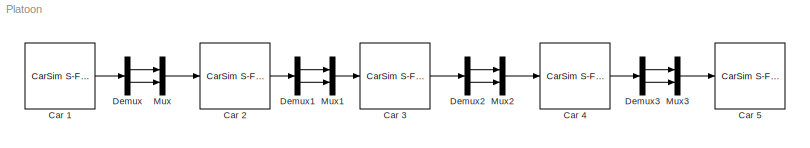
MODEL Platoon
KIND model
BLOCK [Reference] Car 1  REF=Solver_SF/CarSim S-Function
  Ports = [0, 1]
  Priority = 1
  Run_RTs = off
  SID = 24
  SIMFILE = Platoon_Car_1.sim
  SourceBlock = Solver_SF/CarSim S-Function
  SourceType = Vehicle math model library
  StopMode_ind = Vehicle Model
  vs_state_ind = Run
BLOCK [Reference] Car 2  REF=Solver_SF/CarSim S-Function
  Ports = [1, 1]
  Priority = 1
  Run_RTs = off
  SID = 57
  SIMFILE = Platoon_Car_2.sim
  SourceBlock = Solver_SF/CarSim S-Function
  SourceType = Vehicle math model library
  StopMode_ind = Vehicle Model
  vs_state_ind = Run
BLOCK [Reference] Car 3  REF=Solver_SF/CarSim S-Function
  Ports = [1, 1]
  Priority = 1
  Run_RTs = off
  SID = 58
  SIMFILE = Platoon_Car_3.sim
  SourceBlock = Solver_SF/CarSim S-Function
  SourceType = Vehicle math model library
  StopMode_ind = Vehicle Model
  vs_state_ind = Run
BLOCK [Reference] Car 4  REF=Solver_SF/CarSim S-Function
  Ports = [1, 1]
  Priority = 1
  Run_RTs = off
  SID = 59
  SIMFILE = Platoon_Car_4.sim
  SourceBlock = Solver_SF/CarSim S-Function
  SourceType = Vehicle math model library
  StopMode_ind = Vehicle Model
  vs_state_ind = Run
BLOCK [Reference] Car 5  REF=Solver_SF/CarSim S-Function
  Ports = [1]
  Priority = 1
  Run_RTs = off
  SID = 60
  SIMFILE = Platoon_Car_5.sim
  SourceBlock = Solver_SF/CarSim S-Function
  SourceType = Vehicle math model library
  StopMode_ind = Vehicle Model
  vs_state_ind = Run
BLOCK [Demux] Demux
  DisplayOption = bar
  Outputs = 2
  Ports = [1, 2]
  SID = 61
BLOCK [Demux] Demux1
  DisplayOption = bar
  Outputs = 2
  Ports = [1, 2]
  SID = 63
BLOCK [Demux] Demux2
  DisplayOption = bar
  Outputs = 2
  Ports = [1, 2]
  SID = 65
BLOCK [Demux] Demux3
  DisplayOption = bar
  Outputs = 2
  Ports = [1, 2]
  SID = 67
BLOCK [Mux] Mux
  DisplayOption = bar
  Inputs = 2
  Ports = [2, 1]
  SID = 62
BLOCK [Mux] Mux1
  DisplayOption = bar
  Inputs = 2
  Ports = [2, 1]
  SID = 64
BLOCK [Mux] Mux2
  DisplayOption = bar
  Inputs = 2
  Ports = [2, 1]
  SID = 66
BLOCK [Mux] Mux3
  DisplayOption = bar
  Inputs = 2
  Ports = [2, 1]
  SID = 68
LINE Car 1:1 -> Demux:1
LINE Car 2:1 -> Demux1:1
LINE Car 3:1 -> Demux2:1
LINE Car 4:1 -> Demux3:1
LINE Demux1:1 -> Mux1:1
LINE Demux1:2 -> Mux1:2
LINE Demux2:1 -> Mux2:1
LINE Demux2:2 -> Mux2:2
LINE Demux3:1 -> Mux3:1
LINE Demux3:2 -> Mux3:2
LINE Demux:1 -> Mux:1
LINE Demux:2 -> Mux:2
LINE Mux1:1 -> Car 3:1
LINE Mux2:1 -> Car 4:1
LINE Mux3:1 -> Car 5:1
LINE Mux:1 -> Car 2:1
